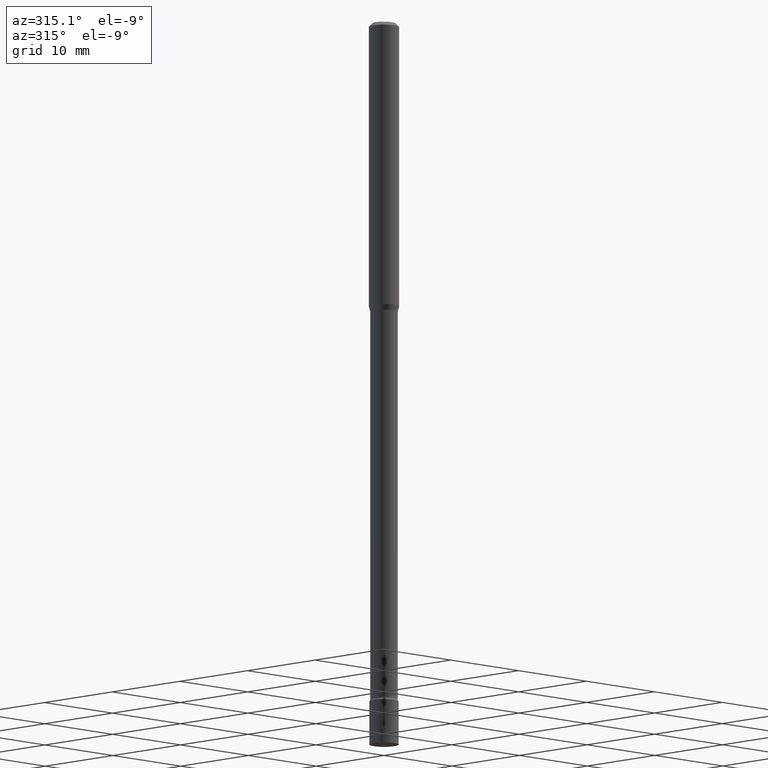
[diagram: clean part render]
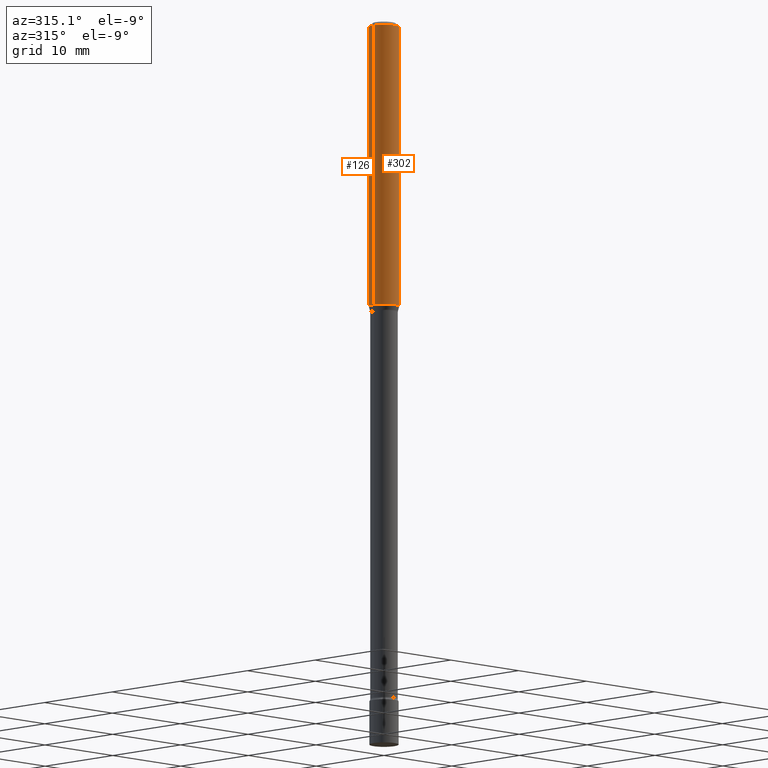
[diagram: same view with one multi-face feature highlighted, each face labeled with its STEP entity id]
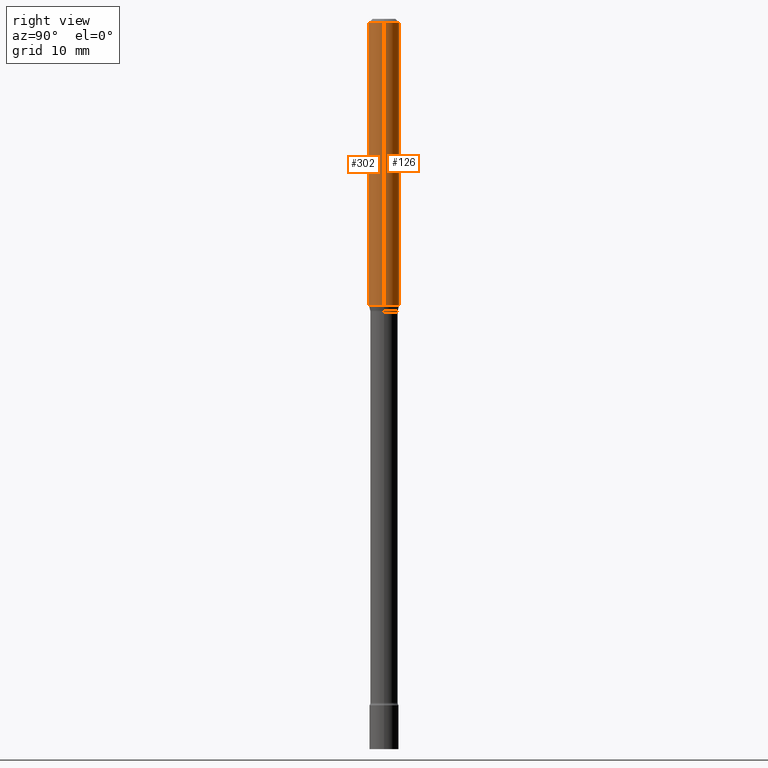
[diagram: same view with one multi-face feature highlighted, each face labeled with its STEP entity id]
A machine part, auxiliary view. The highlighted faces form ONE feature: a constant-radius fillet chain: 2 tangent blend faces with common blend radius 1.5875 mm. The faces share edges in the B-rep.
A second angle (right view) of the same feature is appended — it is thin or edge-on in the first view.
Their STEP definitions:
[1] entity #302 (Cylinder):
#11 = DIRECTION ( 'NONE',  ( 1.000000000000000000, -6.982962677686262766E-15, 0.000000000000000000 ) ) ;
#12 = EDGE_LOOP ( 'NONE', ( #476, #479, #59, #359 ) ) ;
#25 = EDGE_CURVE ( 'NONE', #317, #389, #207, .T. ) ;
#45 = EDGE_CURVE ( 'NONE', #185, #317, #142, .T. ) ;
#50 = AXIS2_PLACEMENT_3D ( 'NONE', #174, #238, #269 ) ;
#59 = ORIENTED_EDGE ( 'NONE', *, *, #25, .T. ) ;
#83 = CARTESIAN_POINT ( 'NONE',  ( -0.06250000000000000000, -1.637243026958912814E-15, -0.01500000000000003067 ) ) ;
#120 = DIRECTION ( 'NONE',  ( -2.445468806185136597E-29, 3.491481338843145583E-15, 1.000000000000000000 ) ) ;
#133 = CIRCLE ( 'NONE', #50, 0.06250000000000000000 ) ;
#138 = EDGE_CURVE ( 'NONE', #230, #389, #133, .T. ) ;
#142 = CIRCLE ( 'NONE', #346, 0.06250000000000000000 ) ;
#143 = CARTESIAN_POINT ( 'NONE',  ( 0.06250000000000000000, -4.546727420890695056E-15, -1.177234490073830075 ) ) ;
#146 = DIRECTION ( 'NONE',  ( -2.445468806185136597E-29, 3.491481338843145583E-15, 1.000000000000000000 ) ) ;
#149 = CARTESIAN_POINT ( 'NONE',  ( 0.000000000000000000, 0.000000000000000000, 0.000000000000000000 ) ) ;
#159 = CARTESIAN_POINT ( 'NONE',  ( -0.06250000000000000000, 4.440892098500626162E-16, -3.074334431409316114E-30 ) ) ;
#162 = CARTESIAN_POINT ( 'NONE',  ( 2.878890223040817361E-29, -4.110292253535303386E-15, -1.177234490073830075 ) ) ;
#168 = CARTESIAN_POINT ( 'NONE',  ( 0.06250000000000000000, -4.364351673553916694E-16, 3.047610484872459871E-30 ) ) ;
#173 = VECTOR ( 'NONE', #412, 39.37007874015748143 ) ;
#174 = CARTESIAN_POINT ( 'NONE',  ( 3.668203209277712094E-31, -5.237222008264728876E-17, -0.01500000000000003067 ) ) ;
#185 = VERTEX_POINT ( 'NONE', #492 ) ;
#207 = LINE ( 'NONE', #168, #173 ) ;
#227 = FACE_OUTER_BOUND ( 'NONE', #12, .T. ) ;
#230 = VERTEX_POINT ( 'NONE', #83 ) ;
#238 = DIRECTION ( 'NONE',  ( -2.445468806185136597E-29, 3.491481338843145583E-15, 1.000000000000000000 ) ) ;
#240 = VECTOR ( 'NONE', #481, 39.37007874015748143 ) ;
#269 = DIRECTION ( 'NONE',  ( 1.000000000000000000, -6.982962677686266711E-15, 0.000000000000000000 ) ) ;
#302 = ADVANCED_FACE ( 'NONE', ( #227 ), #501, .T. ) ;
#317 = VERTEX_POINT ( 'NONE', #143 ) ;
#346 = AXIS2_PLACEMENT_3D ( 'NONE', #162, #120, #11 ) ;
#359 = ORIENTED_EDGE ( 'NONE', *, *, #138, .F. ) ;
#389 = VERTEX_POINT ( 'NONE', #506 ) ;
#401 = LINE ( 'NONE', #159, #240 ) ;
#405 = AXIS2_PLACEMENT_3D ( 'NONE', #149, #146, #466 ) ;
#412 = DIRECTION ( 'NONE',  ( -2.445468806185136877E-29, 3.491481338843145188E-15, 1.000000000000000000 ) ) ;
#466 = DIRECTION ( 'NONE',  ( 1.000000000000000000, -6.982962677686266711E-15, 4.876176775795935793E-29 ) ) ;
#476 = ORIENTED_EDGE ( 'NONE', *, *, #497, .F. ) ;
#479 = ORIENTED_EDGE ( 'NONE', *, *, #45, .T. ) ;
#481 = DIRECTION ( 'NONE',  ( -2.445468806185136877E-29, 3.491481338843145188E-15, 1.000000000000000000 ) ) ;
#492 = CARTESIAN_POINT ( 'NONE',  ( -0.06250000000000000000, -3.666203043685241559E-15, -1.177234490073830075 ) ) ;
#497 = EDGE_CURVE ( 'NONE', #185, #230, #401, .T. ) ;
#501 = CYLINDRICAL_SURFACE ( 'NONE', #405, 0.06250000000000000000 ) ;
#506 = CARTESIAN_POINT ( 'NONE',  ( 0.06250000000000000000, -4.888073874380389458E-16, -0.01500000000000003067 ) ) ;
[2] entity #126 (Cylinder):
#5 = FACE_OUTER_BOUND ( 'NONE', #198, .T. ) ;
#22 = CARTESIAN_POINT ( 'NONE',  ( 2.878890223040817361E-29, -4.110292253535303386E-15, -1.177234490073830075 ) ) ;
#25 = EDGE_CURVE ( 'NONE', #317, #389, #207, .T. ) ;
#83 = CARTESIAN_POINT ( 'NONE',  ( -0.06250000000000000000, -1.637243026958912814E-15, -0.01500000000000003067 ) ) ;
#99 = ORIENTED_EDGE ( 'NONE', *, *, #25, .F. ) ;
#111 = CIRCLE ( 'NONE', #368, 0.06250000000000000000 ) ;
#126 = ADVANCED_FACE ( 'NONE', ( #5 ), #218, .T. ) ;
#143 = CARTESIAN_POINT ( 'NONE',  ( 0.06250000000000000000, -4.546727420890695056E-15, -1.177234490073830075 ) ) ;
#144 = ORIENTED_EDGE ( 'NONE', *, *, #497, .T. ) ;
#159 = CARTESIAN_POINT ( 'NONE',  ( -0.06250000000000000000, 4.440892098500626162E-16, -3.074334431409316114E-30 ) ) ;
#168 = CARTESIAN_POINT ( 'NONE',  ( 0.06250000000000000000, -4.364351673553916694E-16, 3.047610484872459871E-30 ) ) ;
#173 = VECTOR ( 'NONE', #412, 39.37007874015748143 ) ;
#185 = VERTEX_POINT ( 'NONE', #492 ) ;
#198 = EDGE_LOOP ( 'NONE', ( #425, #144, #289, #99 ) ) ;
#207 = LINE ( 'NONE', #168, #173 ) ;
#215 = DIRECTION ( 'NONE',  ( -2.445468806185136597E-29, 3.491481338843145583E-15, 1.000000000000000000 ) ) ;
#218 = CYLINDRICAL_SURFACE ( 'NONE', #287, 0.06250000000000000000 ) ;
#225 = CARTESIAN_POINT ( 'NONE',  ( 0.000000000000000000, 0.000000000000000000, 0.000000000000000000 ) ) ;
#230 = VERTEX_POINT ( 'NONE', #83 ) ;
#231 = DIRECTION ( 'NONE',  ( -2.445468806185136597E-29, 3.491481338843145583E-15, 1.000000000000000000 ) ) ;
#240 = VECTOR ( 'NONE', #481, 39.37007874015748143 ) ;
#263 = CIRCLE ( 'NONE', #499, 0.06250000000000000000 ) ;
#287 = AXIS2_PLACEMENT_3D ( 'NONE', #225, #215, #376 ) ;
#289 = ORIENTED_EDGE ( 'NONE', *, *, #364, .F. ) ;
#317 = VERTEX_POINT ( 'NONE', #143 ) ;
#350 = EDGE_CURVE ( 'NONE', #317, #185, #111, .T. ) ;
#364 = EDGE_CURVE ( 'NONE', #389, #230, #263, .T. ) ;
#368 = AXIS2_PLACEMENT_3D ( 'NONE', #22, #464, #420 ) ;
#376 = DIRECTION ( 'NONE',  ( 1.000000000000000000, -6.982962677686266711E-15, 4.876176775795935793E-29 ) ) ;
#386 = DIRECTION ( 'NONE',  ( 1.000000000000000000, -6.982962677686266711E-15, 0.000000000000000000 ) ) ;
#389 = VERTEX_POINT ( 'NONE', #506 ) ;
#401 = LINE ( 'NONE', #159, #240 ) ;
#412 = DIRECTION ( 'NONE',  ( -2.445468806185136877E-29, 3.491481338843145188E-15, 1.000000000000000000 ) ) ;
#420 = DIRECTION ( 'NONE',  ( 1.000000000000000000, -6.982962677686262766E-15, 0.000000000000000000 ) ) ;
#423 = CARTESIAN_POINT ( 'NONE',  ( 3.668203209277712094E-31, -5.237222008264728876E-17, -0.01500000000000003067 ) ) ;
#425 = ORIENTED_EDGE ( 'NONE', *, *, #350, .T. ) ;
#464 = DIRECTION ( 'NONE',  ( -2.445468806185136597E-29, 3.491481338843145583E-15, 1.000000000000000000 ) ) ;
#481 = DIRECTION ( 'NONE',  ( -2.445468806185136877E-29, 3.491481338843145188E-15, 1.000000000000000000 ) ) ;
#492 = CARTESIAN_POINT ( 'NONE',  ( -0.06250000000000000000, -3.666203043685241559E-15, -1.177234490073830075 ) ) ;
#497 = EDGE_CURVE ( 'NONE', #185, #230, #401, .T. ) ;
#499 = AXIS2_PLACEMENT_3D ( 'NONE', #423, #231, #386 ) ;
#506 = CARTESIAN_POINT ( 'NONE',  ( 0.06250000000000000000, -4.888073874380389458E-16, -0.01500000000000003067 ) ) ;